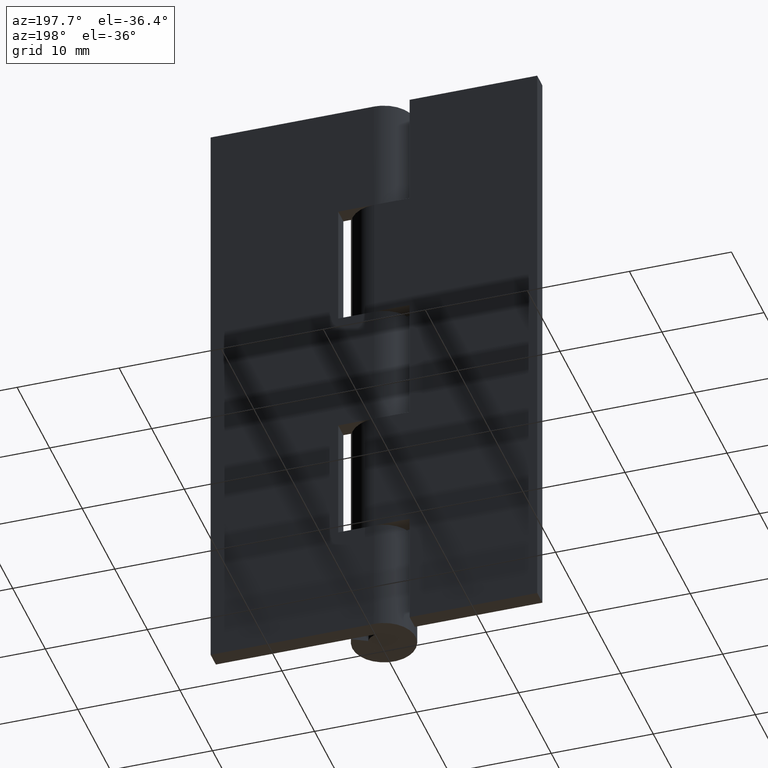
[diagram: clean part render]
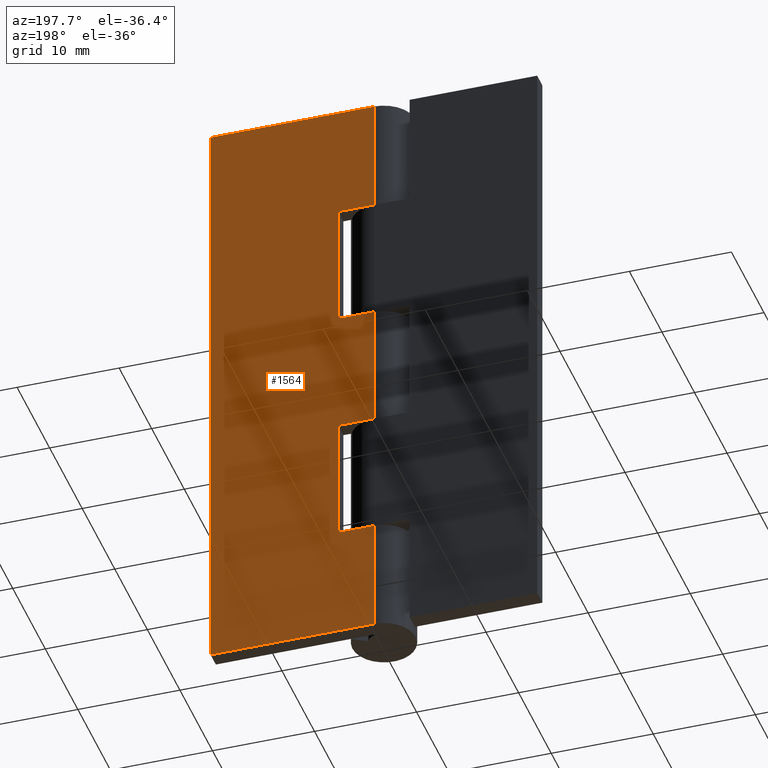
[diagram: same view with one face highlighted and labeled with its STEP entity id]
A machine part, auxiliary view. The second image highlights one B-rep face of the part: STEP entity #1564.
In plain terms, the highlighted face is a freeform B-spline surface patch.
Its self-contained STEP definition (entity closure, byte-faithful):
#800=CARTESIAN_POINT('',(3.499999999999901,3.099998000000050,23.800003000000000));
#801=VERTEX_POINT('',#800);
#807=CARTESIAN_POINT('',(3.499999999999901,3.099998000000050,11.399993999999900));
#808=VERTEX_POINT('',#807);
#809=CARTESIAN_POINT('',(3.499999999999901,3.099998000000050,23.800003000000000));
#810=CARTESIAN_POINT('',(3.499999999999901,3.099998000000050,11.399993999999900));
#811=QUASI_UNIFORM_CURVE('',1,(#809,#810),.UNSPECIFIED.,.F.,.U.);
#812=EDGE_CURVE('',#801,#808,#811,.T.);
#835=CARTESIAN_POINT('',(0.003521362805220,3.099998000000050,11.399993999999900));
#836=VERTEX_POINT('',#835);
#837=CARTESIAN_POINT('',(3.499999999999901,3.099998000000050,11.399993999999900));
#838=CARTESIAN_POINT('',(0.003521362805220,3.099998000000050,11.399993999999900));
#839=QUASI_UNIFORM_CURVE('',1,(#837,#838),.UNSPECIFIED.,.F.,.U.);
#840=EDGE_CURVE('',#808,#836,#839,.T.);
#962=CARTESIAN_POINT('',(0.003521362805220,3.099998000000050,23.800003000000000));
#963=VERTEX_POINT('',#962);
#969=CARTESIAN_POINT('',(0.003521362805220,3.099998000000050,23.800003000000000));
#970=CARTESIAN_POINT('',(3.499999999999901,3.099998000000050,23.800003000000000));
#971=QUASI_UNIFORM_CURVE('',1,(#969,#970),.UNSPECIFIED.,.F.,.U.);
#972=EDGE_CURVE('',#963,#801,#971,.T.);
#990=CARTESIAN_POINT('',(3.499999999999901,3.099998000000050,48.600006000000000));
#991=VERTEX_POINT('',#990);
#997=CARTESIAN_POINT('',(3.499999999999901,3.099998000000050,36.199996999999897));
#998=VERTEX_POINT('',#997);
#999=CARTESIAN_POINT('',(3.499999999999901,3.099998000000050,36.199996999999897));
#1000=CARTESIAN_POINT('',(3.499999999999901,3.099998000000050,48.600006000000000));
#1001=QUASI_UNIFORM_CURVE('',1,(#999,#1000),.UNSPECIFIED.,.F.,.U.);
#1002=EDGE_CURVE('',#998,#991,#1001,.T.);
#1075=CARTESIAN_POINT('',(0.003521362805220,3.099998000000050,48.600006000000000));
#1076=VERTEX_POINT('',#1075);
#1082=CARTESIAN_POINT('',(3.499999999999901,3.099998000000050,48.600006000000000));
#1083=CARTESIAN_POINT('',(0.003521362805220,3.099998000000050,48.600006000000000));
#1084=QUASI_UNIFORM_CURVE('',1,(#1082,#1083),.UNSPECIFIED.,.F.,.U.);
#1085=EDGE_CURVE('',#991,#1076,#1084,.T.);
#1102=CARTESIAN_POINT('',(0.003521362805220,3.099998000000050,36.199996999999897));
#1103=VERTEX_POINT('',#1102);
#1104=CARTESIAN_POINT('',(0.003521362805220,3.099998000000050,36.199996999999897));
#1105=CARTESIAN_POINT('',(3.499999999999901,3.099998000000050,36.199996999999897));
#1106=QUASI_UNIFORM_CURVE('',1,(#1104,#1105),.UNSPECIFIED.,.F.,.U.);
#1107=EDGE_CURVE('',#1103,#998,#1106,.T.);
#1208=CARTESIAN_POINT('',(16.0,3.099998000000000,60.0));
#1209=VERTEX_POINT('',#1208);
#1215=CARTESIAN_POINT('',(0.003521362805220,3.099998000000000,60.0));
#1216=VERTEX_POINT('',#1215);
#1217=CARTESIAN_POINT('',(16.0,3.099998000000000,60.0));
#1218=CARTESIAN_POINT('',(0.003521362805220,3.099998000000000,60.0));
#1219=QUASI_UNIFORM_CURVE('',1,(#1217,#1218),.UNSPECIFIED.,.F.,.U.);
#1220=EDGE_CURVE('',#1209,#1216,#1219,.T.);
#1286=CARTESIAN_POINT('',(0.003521362805220,3.099998000000000,0.0));
#1287=VERTEX_POINT('',#1286);
#1307=CARTESIAN_POINT('',(16.0,3.099998000000000,0.0));
#1308=VERTEX_POINT('',#1307);
#1309=CARTESIAN_POINT('',(16.0,3.099998000000000,0.0));
#1310=CARTESIAN_POINT('',(0.003521362805220,3.099998000000000,0.0));
#1311=QUASI_UNIFORM_CURVE('',1,(#1309,#1310),.UNSPECIFIED.,.F.,.U.);
#1312=EDGE_CURVE('',#1308,#1287,#1311,.T.);
#1341=CARTESIAN_POINT('',(16.0,3.099998000000000,0.0));
#1342=CARTESIAN_POINT('',(16.0,3.099998000000000,60.0));
#1343=QUASI_UNIFORM_CURVE('',1,(#1341,#1342),.UNSPECIFIED.,.F.,.U.);
#1344=EDGE_CURVE('',#1308,#1209,#1343,.T.);
#1395=CARTESIAN_POINT('',(0.003521362805220,3.099998000000050,48.600006000000000));
#1396=CARTESIAN_POINT('',(0.003521362805220,3.099998000000000,60.0));
#1397=QUASI_UNIFORM_CURVE('',1,(#1395,#1396),.UNSPECIFIED.,.F.,.U.);
#1398=EDGE_CURVE('',#1076,#1216,#1397,.T.);
#1500=CARTESIAN_POINT('',(0.003521362805220,3.099998000000000,0.0));
#1501=CARTESIAN_POINT('',(0.003521362805220,3.099998000000050,11.399993999999900));
#1502=QUASI_UNIFORM_CURVE('',1,(#1500,#1501),.UNSPECIFIED.,.F.,.U.);
#1503=EDGE_CURVE('',#1287,#836,#1502,.T.);
#1537=CARTESIAN_POINT('',(0.003521362805220,3.099998000000050,23.800003000000000));
#1538=CARTESIAN_POINT('',(0.003521362805220,3.099998000000050,36.199996999999897));
#1539=QUASI_UNIFORM_CURVE('',1,(#1537,#1538),.UNSPECIFIED.,.F.,.U.);
#1540=EDGE_CURVE('',#963,#1103,#1539,.T.);
#1545=CARTESIAN_POINT('',(-0.795502714118380,3.099998000000000,-2.996999883708359));
#1546=CARTESIAN_POINT('',(-0.795502714118380,3.099998000000000,62.997001493033771));
#1547=CARTESIAN_POINT('',(16.799024505982590,3.099998000000000,-2.996999883708359));
#1548=CARTESIAN_POINT('',(16.799024505982590,3.099998000000000,62.997001493033771));
#1549=B_SPLINE_SURFACE_WITH_KNOTS('',1,1,((#1545,#1547),(#1546,#1548)),.UNSPECIFIED.,.F.,.F.,.U.,(2,2),(2,2),(0.0,65.994001376742133),(0.0,17.594527220100971),.UNSPECIFIED.);
#1550=ORIENTED_EDGE('',*,*,#812,.F.);
#1551=ORIENTED_EDGE('',*,*,#972,.F.);
#1552=ORIENTED_EDGE('',*,*,#1540,.T.);
#1553=ORIENTED_EDGE('',*,*,#1107,.T.);
#1554=ORIENTED_EDGE('',*,*,#1002,.T.);
#1555=ORIENTED_EDGE('',*,*,#1085,.T.);
#1556=ORIENTED_EDGE('',*,*,#1398,.T.);
#1557=ORIENTED_EDGE('',*,*,#1220,.F.);
#1558=ORIENTED_EDGE('',*,*,#1344,.F.);
#1559=ORIENTED_EDGE('',*,*,#1312,.T.);
#1560=ORIENTED_EDGE('',*,*,#1503,.T.);
#1561=ORIENTED_EDGE('',*,*,#840,.F.);
#1562=EDGE_LOOP('',(#1550,#1551,#1552,#1553,#1554,#1555,#1556,#1557,#1558,#1559,#1560,#1561));
#1563=FACE_OUTER_BOUND('',#1562,.T.);
#1564=ADVANCED_FACE('',(#1563),#1549,.T.);